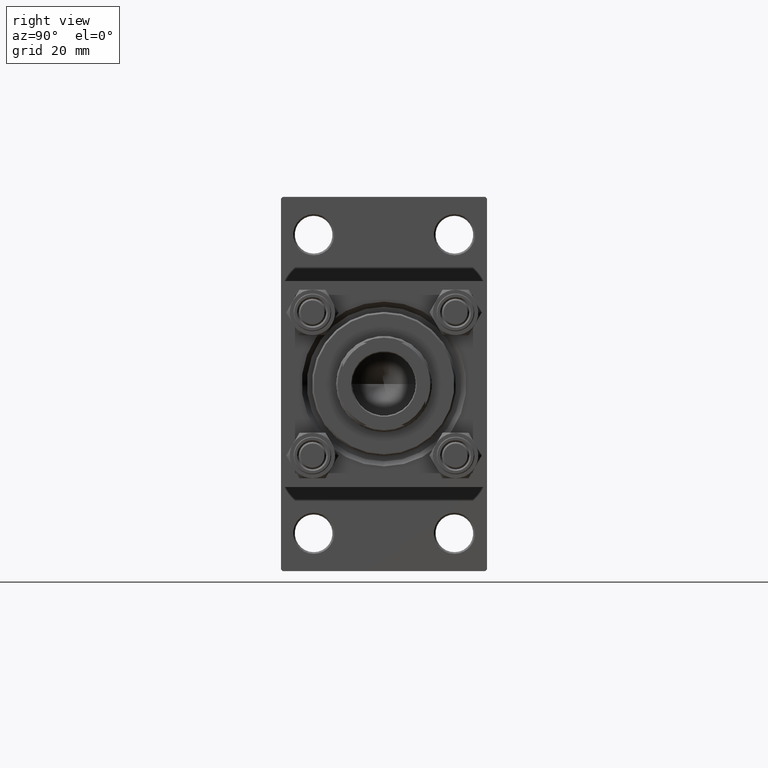
[diagram: clean part render]
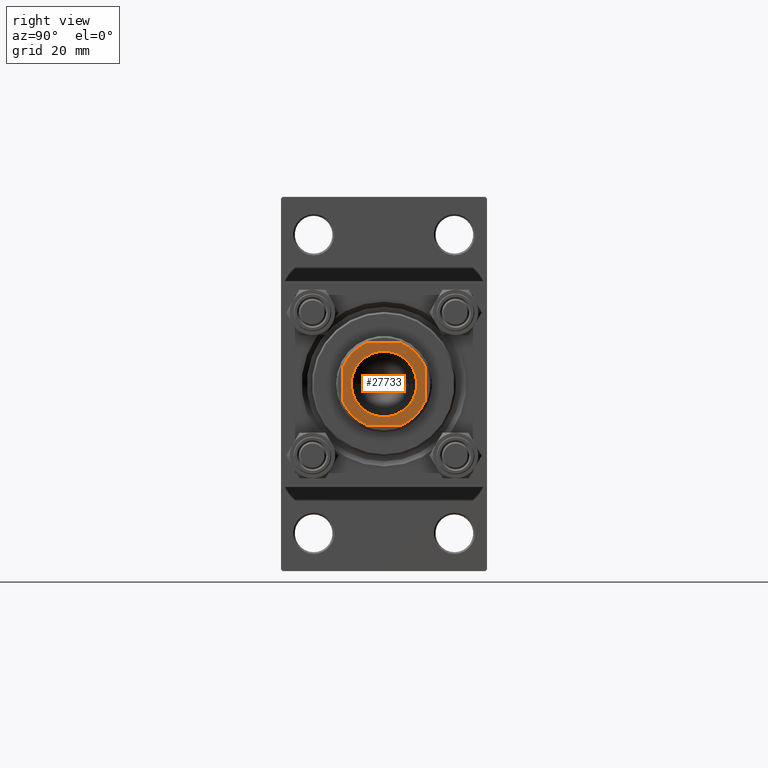
[diagram: same view with one face highlighted and labeled with its STEP entity id]
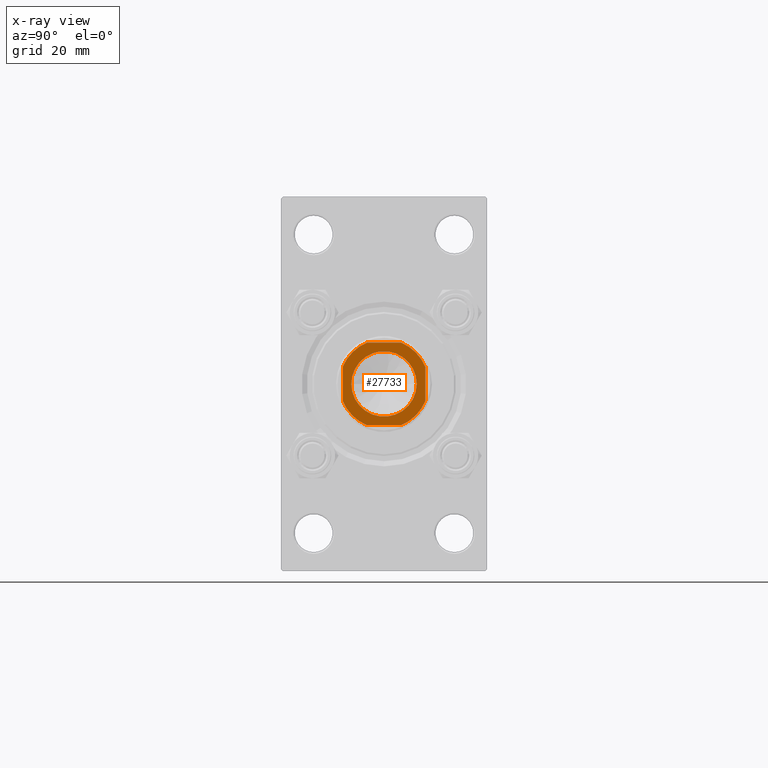
[diagram: x-ray of the same camera — body ghosted, the highlighted face saturated]
A machine part, right view. The second image highlights one B-rep face of the part: STEP entity #27733.
The next image is the same camera in x-ray: the body ghosted, the highlighted face saturated — about 0% of this face is hidden behind the body in this view.
In plain terms, the highlighted planar face has unit normal (1, 0, 0).
Its self-contained STEP definition (entity closure, byte-faithful):
#30 = VERTEX_POINT ( 'NONE', #38761 ) ;
#697 = DIRECTION ( 'NONE',  ( -0.000000000000000000, 0.000000000000000000, 1.000000000000000000 ) ) ;
#725 = ORIENTED_EDGE ( 'NONE', *, *, #8157, .T. ) ;
#920 = CARTESIAN_POINT ( 'NONE',  ( 11.99999999999999645, 11.99999999999999645, 136.0000000000000000 ) ) ;
#1721 = VECTOR ( 'NONE', #22719, 1000.000000000000000 ) ;
#1910 = LINE ( 'NONE', #920, #43153 ) ;
#2409 = CARTESIAN_POINT ( 'NONE',  ( -5.000000000000031086, -12.00000000000000355, 136.0000000000000000 ) ) ;
#2590 = AXIS2_PLACEMENT_3D ( 'NONE', #23951, #697, #11817 ) ;
#3138 = VERTEX_POINT ( 'NONE', #13269 ) ;
#3645 = CIRCLE ( 'NONE', #14135, 13.00000000000002309 ) ;
#5365 = ORIENTED_EDGE ( 'NONE', *, *, #45945, .T. ) ;
#6492 = VERTEX_POINT ( 'NONE', #29072 ) ;
#6649 = EDGE_LOOP ( 'NONE', ( #16782, #36017, #5365, #35420, #14572, #33686, #33638, #725 ) ) ;
#7300 = CARTESIAN_POINT ( 'NONE',  ( -11.99999999999999822, -12.00000000000000355, 136.0000000000000000 ) ) ;
#7925 = EDGE_CURVE ( 'NONE', #8060, #44543, #1910, .T. ) ;
#8007 = DIRECTION ( 'NONE',  ( 1.000000000000000000, 0.000000000000000000, 0.000000000000000000 ) ) ;
#8060 = VERTEX_POINT ( 'NONE', #11243 ) ;
#8157 = EDGE_CURVE ( 'NONE', #29328, #8060, #3645, .T. ) ;
#9029 = CARTESIAN_POINT ( 'NONE',  ( 5.000000000000042633, 11.99999999999999645, 136.0000000000000000 ) ) ;
#10156 = VERTEX_POINT ( 'NONE', #30828 ) ;
#10264 = FACE_OUTER_BOUND ( 'NONE', #6649, .T. ) ;
#10470 = CARTESIAN_POINT ( 'NONE',  ( 0.000000000000000000, 0.000000000000000000, 136.0000000000000000 ) ) ;
#11151 = ORIENTED_EDGE ( 'NONE', *, *, #15348, .T. ) ;
#11243 = CARTESIAN_POINT ( 'NONE',  ( 12.00000000000000178, -5.000000000000056843, 136.0000000000000000 ) ) ;
#11817 = DIRECTION ( 'NONE',  ( 1.000000000000000000, 0.000000000000000000, 0.000000000000000000 ) ) ;
#12110 = LINE ( 'NONE', #18975, #33651 ) ;
#13269 = CARTESIAN_POINT ( 'NONE',  ( 9.549999999999975842, 0.000000000000000000, 136.0000000000000000 ) ) ;
#14135 = AXIS2_PLACEMENT_3D ( 'NONE', #34247, #19086, #26917 ) ;
#14572 = ORIENTED_EDGE ( 'NONE', *, *, #40180, .T. ) ;
#15161 = AXIS2_PLACEMENT_3D ( 'NONE', #39854, #23968, #17114 ) ;
#15348 = EDGE_CURVE ( 'NONE', #30, #3138, #38453, .T. ) ;
#16176 = DIRECTION ( 'NONE',  ( -0.000000000000000000, 0.000000000000000000, 1.000000000000000000 ) ) ;
#16782 = ORIENTED_EDGE ( 'NONE', *, *, #7925, .T. ) ;
#17114 = DIRECTION ( 'NONE',  ( 1.000000000000000000, 0.000000000000000000, 0.000000000000000000 ) ) ;
#17974 = EDGE_LOOP ( 'NONE', ( #36979, #11151 ) ) ;
#18372 = DIRECTION ( 'NONE',  ( -0.000000000000000000, 0.000000000000000000, 1.000000000000000000 ) ) ;
#18906 = CARTESIAN_POINT ( 'NONE',  ( 0.000000000000000000, 0.000000000000000000, 136.0000000000000000 ) ) ;
#18975 = CARTESIAN_POINT ( 'NONE',  ( -12.00000000000000000, 11.99999999999999645, 136.0000000000000000 ) ) ;
#19086 = DIRECTION ( 'NONE',  ( -0.000000000000000000, 0.000000000000000000, 1.000000000000000000 ) ) ;
#19337 = AXIS2_PLACEMENT_3D ( 'NONE', #23521, #16176, #23768 ) ;
#20020 = VERTEX_POINT ( 'NONE', #2409 ) ;
#21068 = LINE ( 'NONE', #48106, #39481 ) ;
#22719 = DIRECTION ( 'NONE',  ( 1.000000000000000000, 0.000000000000000000, 0.000000000000000000 ) ) ;
#23521 = CARTESIAN_POINT ( 'NONE',  ( 0.000000000000000000, 0.000000000000000000, 136.0000000000000000 ) ) ;
#23768 = DIRECTION ( 'NONE',  ( 1.000000000000000000, 0.000000000000000000, 0.000000000000000000 ) ) ;
#23951 = CARTESIAN_POINT ( 'NONE',  ( 0.000000000000000000, 0.000000000000000000, 136.0000000000000000 ) ) ;
#23968 = DIRECTION ( 'NONE',  ( 0.000000000000000000, -0.000000000000000000, -1.000000000000000000 ) ) ;
#24044 = CARTESIAN_POINT ( 'NONE',  ( 5.000000000000053291, -12.00000000000000355, 136.0000000000000000 ) ) ;
#24323 = EDGE_CURVE ( 'NONE', #10156, #36222, #48424, .T. ) ;
#25061 = AXIS2_PLACEMENT_3D ( 'NONE', #10470, #32984, #40791 ) ;
#25698 = PLANE ( 'NONE',  #39635 ) ;
#26917 = DIRECTION ( 'NONE',  ( 1.000000000000000000, 0.000000000000000000, 0.000000000000000000 ) ) ;
#27733 = ADVANCED_FACE ( 'NONE', ( #44900, #10264 ), #25698, .T. ) ;
#28982 = CIRCLE ( 'NONE', #19337, 13.00000000000001421 ) ;
#29008 = CARTESIAN_POINT ( 'NONE',  ( 11.99999999999999822, 5.000000000000037303, 136.0000000000000000 ) ) ;
#29072 = CARTESIAN_POINT ( 'NONE',  ( -12.00000000000000000, -5.000000000000039968, 136.0000000000000000 ) ) ;
#29328 = VERTEX_POINT ( 'NONE', #24044 ) ;
#30828 = CARTESIAN_POINT ( 'NONE',  ( -4.999999999999987566, 11.99999999999999645, 136.0000000000000000 ) ) ;
#31667 = EDGE_CURVE ( 'NONE', #20020, #29328, #35071, .T. ) ;
#32984 = DIRECTION ( 'NONE',  ( 0.000000000000000000, -0.000000000000000000, -1.000000000000000000 ) ) ;
#32988 = EDGE_CURVE ( 'NONE', #44543, #41344, #33254, .T. ) ;
#33082 = AXIS2_PLACEMENT_3D ( 'NONE', #18906, #34307, #8007 ) ;
#33254 = CIRCLE ( 'NONE', #2590, 13.00000000000001243 ) ;
#33638 = ORIENTED_EDGE ( 'NONE', *, *, #31667, .T. ) ;
#33651 = VECTOR ( 'NONE', #46008, 1000.000000000000000 ) ;
#33686 = ORIENTED_EDGE ( 'NONE', *, *, #49838, .T. ) ;
#33776 = DIRECTION ( 'NONE',  ( 1.000000000000000000, 0.000000000000000000, 0.000000000000000000 ) ) ;
#34247 = CARTESIAN_POINT ( 'NONE',  ( 0.000000000000000000, 0.000000000000000000, 136.0000000000000000 ) ) ;
#34307 = DIRECTION ( 'NONE',  ( -0.000000000000000000, 0.000000000000000000, 1.000000000000000000 ) ) ;
#35071 = LINE ( 'NONE', #7300, #1721 ) ;
#35420 = ORIENTED_EDGE ( 'NONE', *, *, #24323, .T. ) ;
#36017 = ORIENTED_EDGE ( 'NONE', *, *, #32988, .T. ) ;
#36222 = VERTEX_POINT ( 'NONE', #39892 ) ;
#36979 = ORIENTED_EDGE ( 'NONE', *, *, #48645, .T. ) ;
#37555 = CARTESIAN_POINT ( 'NONE',  ( 0.000000000000000000, 0.000000000000000000, 136.0000000000000000 ) ) ;
#38453 = CIRCLE ( 'NONE', #15161, 9.549999999999975842 ) ;
#38761 = CARTESIAN_POINT ( 'NONE',  ( -9.549999999999975842, 1.169537693185719205E-15, 136.0000000000000000 ) ) ;
#39481 = VECTOR ( 'NONE', #47349, 1000.000000000000000 ) ;
#39635 = AXIS2_PLACEMENT_3D ( 'NONE', #37555, #18372, #33776 ) ;
#39854 = CARTESIAN_POINT ( 'NONE',  ( 0.000000000000000000, 0.000000000000000000, 136.0000000000000000 ) ) ;
#39892 = CARTESIAN_POINT ( 'NONE',  ( -12.00000000000000000, 4.999999999999979572, 136.0000000000000000 ) ) ;
#40180 = EDGE_CURVE ( 'NONE', #36222, #6492, #12110, .T. ) ;
#40373 = CIRCLE ( 'NONE', #25061, 9.549999999999975842 ) ;
#40791 = DIRECTION ( 'NONE',  ( 1.000000000000000000, 0.000000000000000000, 0.000000000000000000 ) ) ;
#41344 = VERTEX_POINT ( 'NONE', #9029 ) ;
#43153 = VECTOR ( 'NONE', #43625, 1000.000000000000000 ) ;
#43625 = DIRECTION ( 'NONE',  ( -2.891205793294678326E-16, 1.000000000000000000, -0.000000000000000000 ) ) ;
#44543 = VERTEX_POINT ( 'NONE', #29008 ) ;
#44900 = FACE_BOUND ( 'NONE', #17974, .T. ) ;
#45945 = EDGE_CURVE ( 'NONE', #41344, #10156, #21068, .T. ) ;
#46008 = DIRECTION ( 'NONE',  ( 7.228014483236695816E-17, -1.000000000000000000, 0.000000000000000000 ) ) ;
#47349 = DIRECTION ( 'NONE',  ( -1.000000000000000000, -0.000000000000000000, -0.000000000000000000 ) ) ;
#48106 = CARTESIAN_POINT ( 'NONE',  ( -12.00000000000000000, 11.99999999999999645, 136.0000000000000000 ) ) ;
#48424 = CIRCLE ( 'NONE', #33082, 12.99999999999999289 ) ;
#48645 = EDGE_CURVE ( 'NONE', #3138, #30, #40373, .T. ) ;
#49838 = EDGE_CURVE ( 'NONE', #6492, #20020, #28982, .T. ) ;